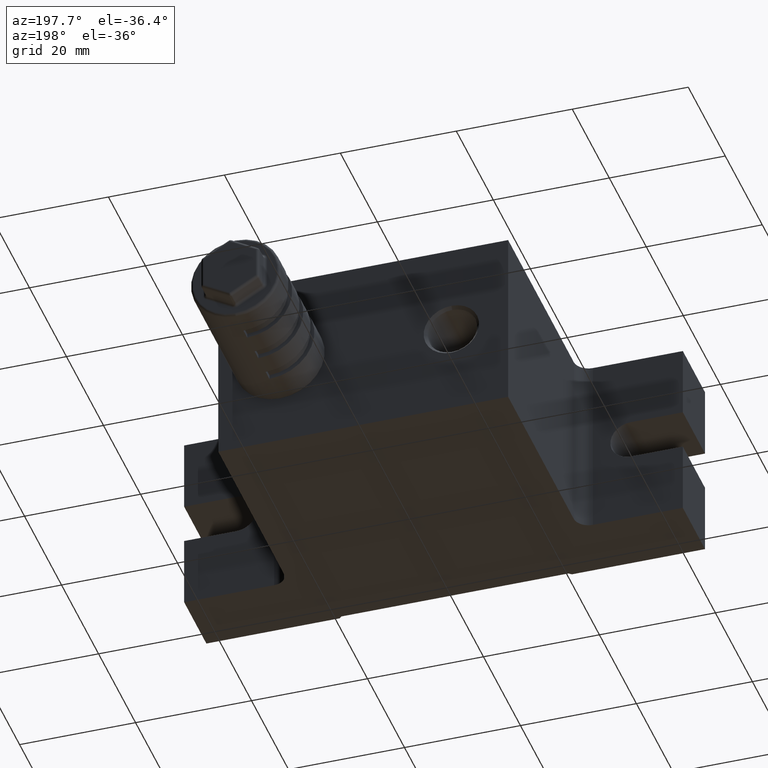
[diagram: clean part render]
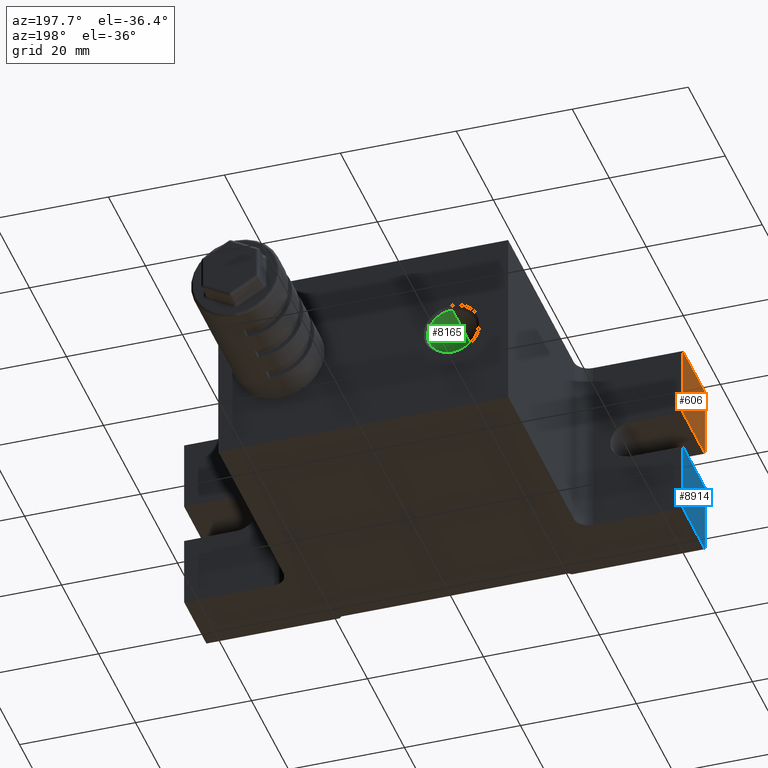
[diagram: same view with three faces highlighted in distinct colors, each labeled with its STEP entity id]
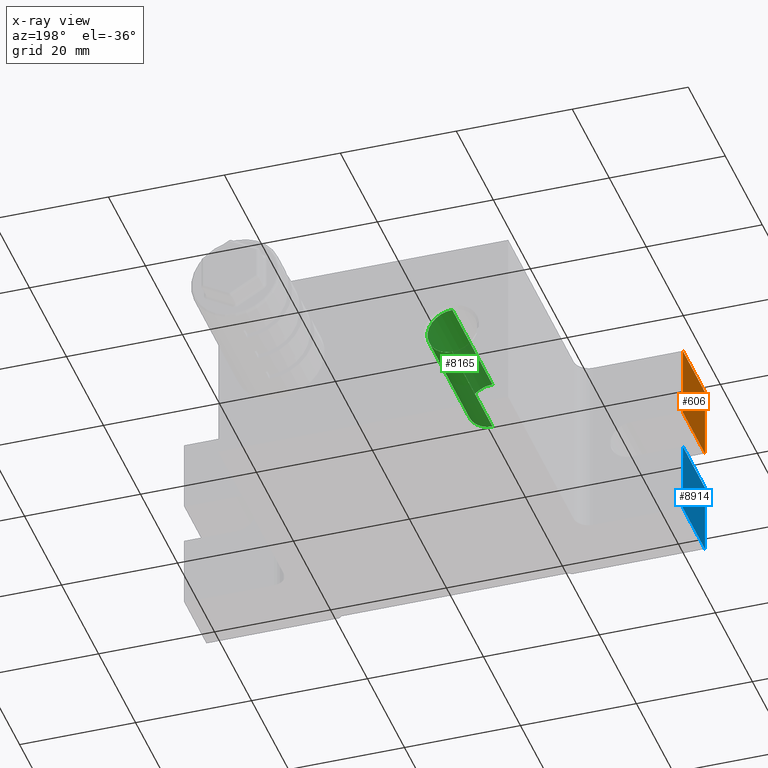
[diagram: x-ray of the same camera — body ghosted, the three highlighted faces saturated]
A machine part, auxiliary view with three faces highlighted in distinct colors.
The next image is the same camera in x-ray (body ghosted, the three faces saturated) — at least one of them is partly hidden behind the body in this view.
Their STEP definitions:

[orange] entity #606 — the highlighted planar face has unit normal (1, 0, 0).
#606 = ADVANCED_FACE ( 'NONE', ( #4977 ), #1241, .F. ) ;
#612 = CARTESIAN_POINT ( 'NONE',  ( -42.99999999999998600, -25.00000000000000000, 3.500000000000000000 ) ) ;
#921 = CARTESIAN_POINT ( 'NONE',  ( -42.99999999999998600, -13.00000000000000500, 3.499999999999999600 ) ) ;
#956 = ORIENTED_EDGE ( 'NONE', *, *, #6387, .F. ) ;
#1241 = PLANE ( 'NONE',  #3696 ) ;
#1456 = VECTOR ( 'NONE', #6156, 1000.000000000000000 ) ;
#1484 = VERTEX_POINT ( 'NONE', #921 ) ;
#2262 = LINE ( 'NONE', #3101, #5756 ) ;
#2457 = LINE ( 'NONE', #7589, #9147 ) ;
#3101 = CARTESIAN_POINT ( 'NONE',  ( -42.99999999999998600, -25.00000000000000000, 16.00000000000000000 ) ) ;
#3179 = CARTESIAN_POINT ( 'NONE',  ( -42.99999999999998600, -25.00000000000000000, 16.00000000000000000 ) ) ;
#3300 = LINE ( 'NONE', #3179, #1456 ) ;
#3696 = AXIS2_PLACEMENT_3D ( 'NONE', #5787, #9631, #5093 ) ;
#3825 = DIRECTION ( 'NONE',  ( -0.0000000000000000000, -0.0000000000000000000, 1.000000000000000000 ) ) ;
#3968 = EDGE_CURVE ( 'NONE', #5928, #4637, #2262, .T. ) ;
#4448 = CARTESIAN_POINT ( 'NONE',  ( -42.99999999999998600, -13.00000000000000500, 16.00000000000000000 ) ) ;
#4637 = VERTEX_POINT ( 'NONE', #612 ) ;
#4970 = EDGE_LOOP ( 'NONE', ( #8744, #9445, #8386, #956 ) ) ;
#4977 = FACE_OUTER_BOUND ( 'NONE', #4970, .T. ) ;
#5093 = DIRECTION ( 'NONE',  ( 0.0000000000000000000, 0.0000000000000000000, -1.000000000000000000 ) ) ;
#5138 = LINE ( 'NONE', #8602, #9641 ) ;
#5263 = VERTEX_POINT ( 'NONE', #4448 ) ;
#5544 = DIRECTION ( 'NONE',  ( -0.0000000000000000000, 1.000000000000000000, -0.0000000000000000000 ) ) ;
#5756 = VECTOR ( 'NONE', #6105, 1000.000000000000000 ) ;
#5787 = CARTESIAN_POINT ( 'NONE',  ( -42.99999999999998600, -25.00000000000000000, 16.00000000000000000 ) ) ;
#5928 = VERTEX_POINT ( 'NONE', #6892 ) ;
#6105 = DIRECTION ( 'NONE',  ( -0.0000000000000000000, -0.0000000000000000000, -1.000000000000000000 ) ) ;
#6156 = DIRECTION ( 'NONE',  ( -0.0000000000000000000, -1.000000000000000000, -0.0000000000000000000 ) ) ;
#6387 = EDGE_CURVE ( 'NONE', #5263, #5928, #3300, .T. ) ;
#6892 = CARTESIAN_POINT ( 'NONE',  ( -42.99999999999998600, -25.00000000000000000, 16.00000000000000000 ) ) ;
#7078 = EDGE_CURVE ( 'NONE', #4637, #1484, #5138, .T. ) ;
#7403 = EDGE_CURVE ( 'NONE', #1484, #5263, #2457, .T. ) ;
#7589 = CARTESIAN_POINT ( 'NONE',  ( -42.99999999999998600, -13.00000000000000500, -16.00000000000000000 ) ) ;
#8386 = ORIENTED_EDGE ( 'NONE', *, *, #3968, .F. ) ;
#8602 = CARTESIAN_POINT ( 'NONE',  ( -42.99999999999998600, -25.00000000000000000, 3.500000000000000000 ) ) ;
#8744 = ORIENTED_EDGE ( 'NONE', *, *, #7403, .F. ) ;
#9147 = VECTOR ( 'NONE', #3825, 1000.000000000000000 ) ;
#9445 = ORIENTED_EDGE ( 'NONE', *, *, #7078, .F. ) ;
#9631 = DIRECTION ( 'NONE',  ( 1.000000000000000000, 0.0000000000000000000, 0.0000000000000000000 ) ) ;
#9641 = VECTOR ( 'NONE', #5544, 1000.000000000000000 ) ;

[blue] entity #8914 — the highlighted planar face has unit normal (1, 0, 0).
#59 = LINE ( 'NONE', #2941, #9544 ) ;
#683 = ORIENTED_EDGE ( 'NONE', *, *, #1835, .F. ) ;
#1649 = VECTOR ( 'NONE', #4329, 1000.000000000000000 ) ;
#1835 = EDGE_CURVE ( 'NONE', #2512, #3799, #4017, .T. ) ;
#2219 = CARTESIAN_POINT ( 'NONE',  ( -42.99999999999998600, -25.00000000000000000, 16.00000000000000000 ) ) ;
#2348 = LINE ( 'NONE', #3633, #8786 ) ;
#2501 = ORIENTED_EDGE ( 'NONE', *, *, #6633, .F. ) ;
#2512 = VERTEX_POINT ( 'NONE', #9412 ) ;
#2877 = DIRECTION ( 'NONE',  ( -0.0000000000000000000, -0.0000000000000000000, 1.000000000000000000 ) ) ;
#2941 = CARTESIAN_POINT ( 'NONE',  ( -42.99999999999998600, -13.00000000000000500, -16.00000000000000000 ) ) ;
#2979 = DIRECTION ( 'NONE',  ( 0.0000000000000000000, 0.0000000000000000000, -1.000000000000000000 ) ) ;
#3006 = VERTEX_POINT ( 'NONE', #4784 ) ;
#3620 = DIRECTION ( 'NONE',  ( 1.000000000000000000, 0.0000000000000000000, 0.0000000000000000000 ) ) ;
#3633 = CARTESIAN_POINT ( 'NONE',  ( -42.99999999999998600, -25.00000000000000000, -16.00000000000000000 ) ) ;
#3682 = CARTESIAN_POINT ( 'NONE',  ( -42.99999999999998600, -25.00000000000000000, 16.00000000000000000 ) ) ;
#3697 = DIRECTION ( 'NONE',  ( -0.0000000000000000000, -1.000000000000000000, -0.0000000000000000000 ) ) ;
#3799 = VERTEX_POINT ( 'NONE', #5108 ) ;
#4017 = LINE ( 'NONE', #2219, #7795 ) ;
#4329 = DIRECTION ( 'NONE',  ( -0.0000000000000000000, 1.000000000000000000, -0.0000000000000000000 ) ) ;
#4590 = AXIS2_PLACEMENT_3D ( 'NONE', #3682, #3620, #2979 ) ;
#4700 = EDGE_CURVE ( 'NONE', #2512, #3006, #7956, .T. ) ;
#4784 = CARTESIAN_POINT ( 'NONE',  ( -42.99999999999998600, -13.00000000000000500, -3.500000000000000000 ) ) ;
#5108 = CARTESIAN_POINT ( 'NONE',  ( -42.99999999999998600, -25.00000000000000000, -16.00000000000000000 ) ) ;
#5193 = ORIENTED_EDGE ( 'NONE', *, *, #4700, .T. ) ;
#5195 = PLANE ( 'NONE',  #4590 ) ;
#6113 = FACE_OUTER_BOUND ( 'NONE', #6761, .T. ) ;
#6633 = EDGE_CURVE ( 'NONE', #6858, #3006, #59, .T. ) ;
#6761 = EDGE_LOOP ( 'NONE', ( #683, #5193, #2501, #8962 ) ) ;
#6858 = VERTEX_POINT ( 'NONE', #7601 ) ;
#7275 = EDGE_CURVE ( 'NONE', #6858, #3799, #2348, .T. ) ;
#7601 = CARTESIAN_POINT ( 'NONE',  ( -42.99999999999998600, -13.00000000000000500, -16.00000000000000000 ) ) ;
#7795 = VECTOR ( 'NONE', #8345, 1000.000000000000000 ) ;
#7956 = LINE ( 'NONE', #8842, #1649 ) ;
#8345 = DIRECTION ( 'NONE',  ( -0.0000000000000000000, -0.0000000000000000000, -1.000000000000000000 ) ) ;
#8786 = VECTOR ( 'NONE', #3697, 1000.000000000000000 ) ;
#8842 = CARTESIAN_POINT ( 'NONE',  ( -42.99999999999998600, -25.00000000000000000, -3.500000000000000000 ) ) ;
#8914 = ADVANCED_FACE ( 'NONE', ( #6113 ), #5195, .F. ) ;
#8962 = ORIENTED_EDGE ( 'NONE', *, *, #7275, .T. ) ;
#9412 = CARTESIAN_POINT ( 'NONE',  ( -42.99999999999998600, -25.00000000000000000, -3.500000000000000000 ) ) ;
#9544 = VECTOR ( 'NONE', #2877, 1000.000000000000000 ) ;

[green] entity #8165 — the highlighted cylindrical surface (edge-blend (fillet) strip) has radius 4.283 mm, axis along (-0, 1, -0).
#250 = CARTESIAN_POINT ( 'NONE',  ( -15.21000000000000100, 2.823000000000002600, -4.282999999999995000 ) ) ;
#313 = ORIENTED_EDGE ( 'NONE', *, *, #8989, .F. ) ;
#756 = CARTESIAN_POINT ( 'NONE',  ( -15.21000000000000100, 24.49999999999996400, 0.0000000000000000000 ) ) ;
#794 = DIRECTION ( 'NONE',  ( 0.0000000000000000000, 0.0000000000000000000, -1.000000000000000000 ) ) ;
#931 = AXIS2_PLACEMENT_3D ( 'NONE', #4892, #3338, #4918 ) ;
#1299 = DIRECTION ( 'NONE',  ( -0.0000000000000000000, 1.000000000000000000, -0.0000000000000000000 ) ) ;
#1630 = VECTOR ( 'NONE', #8271, 1000.000000000000000 ) ;
#2104 = CARTESIAN_POINT ( 'NONE',  ( -15.21000000000000100, 2.823000000000002600, 4.282999999999995000 ) ) ;
#2288 = EDGE_CURVE ( 'NONE', #5430, #2840, #3648, .T. ) ;
#2301 = EDGE_LOOP ( 'NONE', ( #7590, #313, #8975, #4503 ) ) ;
#2840 = VERTEX_POINT ( 'NONE', #4952 ) ;
#3328 = VERTEX_POINT ( 'NONE', #2104 ) ;
#3338 = DIRECTION ( 'NONE',  ( -0.0000000000000000000, 1.000000000000000000, -0.0000000000000000000 ) ) ;
#3648 = CIRCLE ( 'NONE', #3820, 4.282999999999992400 ) ;
#3715 = CARTESIAN_POINT ( 'NONE',  ( -15.21000000000000100, 2.823000000000002600, 0.0000000000000000000 ) ) ;
#3820 = AXIS2_PLACEMENT_3D ( 'NONE', #756, #5978, #794 ) ;
#4310 = VECTOR ( 'NONE', #1299, 1000.000000000000000 ) ;
#4503 = ORIENTED_EDGE ( 'NONE', *, *, #2288, .T. ) ;
#4892 = CARTESIAN_POINT ( 'NONE',  ( -15.21000000000000100, 25.00000000000000000, 0.0000000000000000000 ) ) ;
#4918 = DIRECTION ( 'NONE',  ( 0.0000000000000000000, 0.0000000000000000000, 1.000000000000000000 ) ) ;
#4952 = CARTESIAN_POINT ( 'NONE',  ( -15.21000000000000100, 24.49999999999996400, -4.282999999999992400 ) ) ;
#5430 = VERTEX_POINT ( 'NONE', #5845 ) ;
#5584 = CIRCLE ( 'NONE', #5804, 4.282999999999995000 ) ;
#5592 = VERTEX_POINT ( 'NONE', #250 ) ;
#5747 = CARTESIAN_POINT ( 'NONE',  ( -15.21000000000000100, 25.00000000000000000, -4.282999999999992400 ) ) ;
#5804 = AXIS2_PLACEMENT_3D ( 'NONE', #3715, #7476, #8213 ) ;
#5845 = CARTESIAN_POINT ( 'NONE',  ( -15.21000000000000100, 24.49999999999996400, 4.282999999999992400 ) ) ;
#5978 = DIRECTION ( 'NONE',  ( 0.0000000000000000000, 1.000000000000000000, 0.0000000000000000000 ) ) ;
#6305 = LINE ( 'NONE', #5747, #4310 ) ;
#7212 = EDGE_CURVE ( 'NONE', #5592, #2840, #6305, .T. ) ;
#7476 = DIRECTION ( 'NONE',  ( -0.0000000000000000000, 1.000000000000000000, -0.0000000000000000000 ) ) ;
#7590 = ORIENTED_EDGE ( 'NONE', *, *, #7212, .F. ) ;
#7690 = CYLINDRICAL_SURFACE ( 'NONE', #931, 4.282999999999992400 ) ;
#7816 = LINE ( 'NONE', #9009, #1630 ) ;
#8165 = ADVANCED_FACE ( 'NONE', ( #9350 ), #7690, .F. ) ;
#8213 = DIRECTION ( 'NONE',  ( 0.0000000000000000000, 0.0000000000000000000, 1.000000000000000000 ) ) ;
#8271 = DIRECTION ( 'NONE',  ( -0.0000000000000000000, 1.000000000000000000, -0.0000000000000000000 ) ) ;
#8975 = ORIENTED_EDGE ( 'NONE', *, *, #9531, .T. ) ;
#8989 = EDGE_CURVE ( 'NONE', #3328, #5592, #5584, .T. ) ;
#9009 = CARTESIAN_POINT ( 'NONE',  ( -15.21000000000000100, 25.00000000000000000, 4.282999999999992400 ) ) ;
#9350 = FACE_OUTER_BOUND ( 'NONE', #2301, .T. ) ;
#9531 = EDGE_CURVE ( 'NONE', #3328, #5430, #7816, .T. ) ;